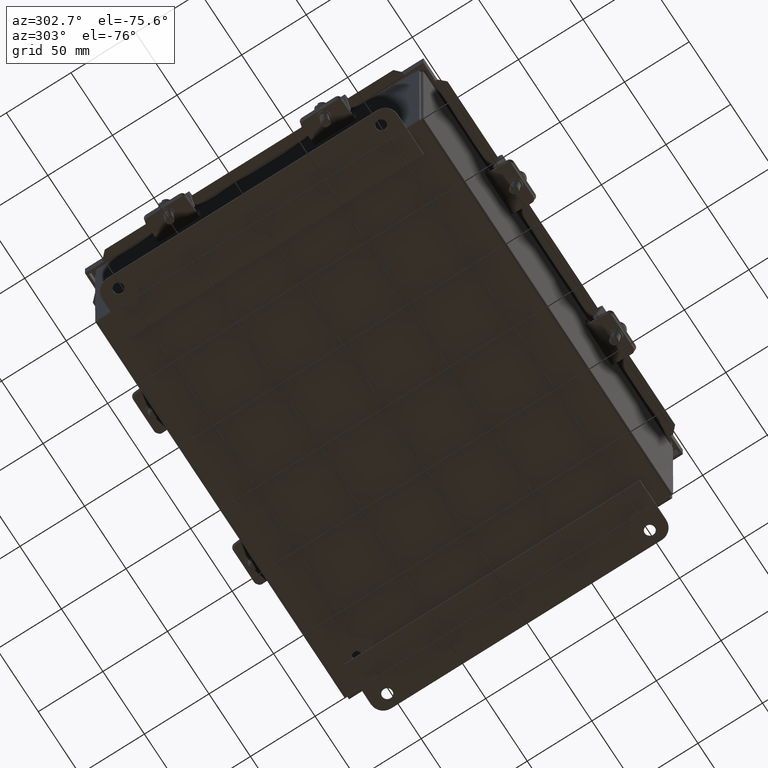
[diagram: clean part render]
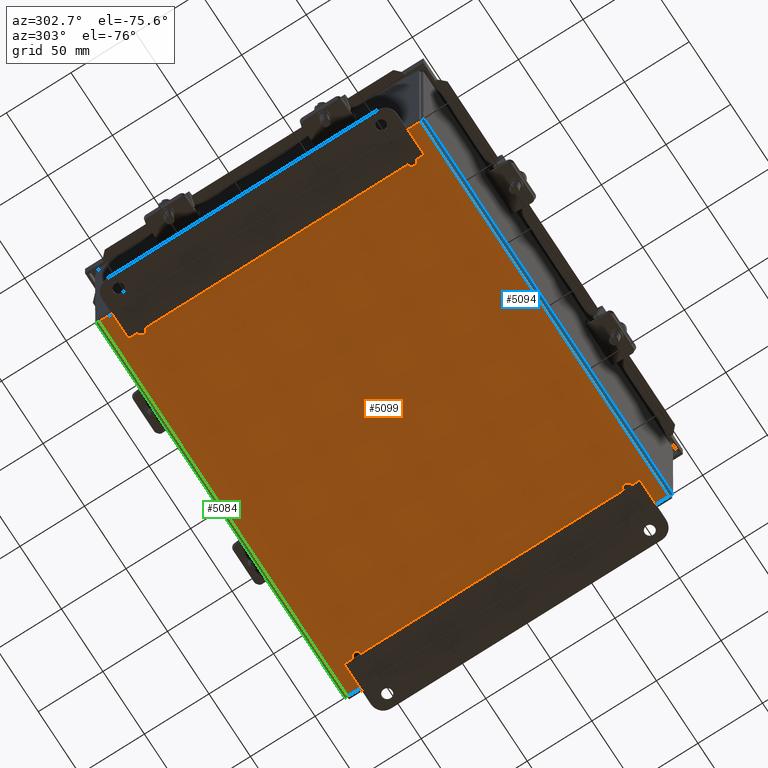
[diagram: same view with three faces highlighted in distinct colors, each labeled with its STEP entity id]
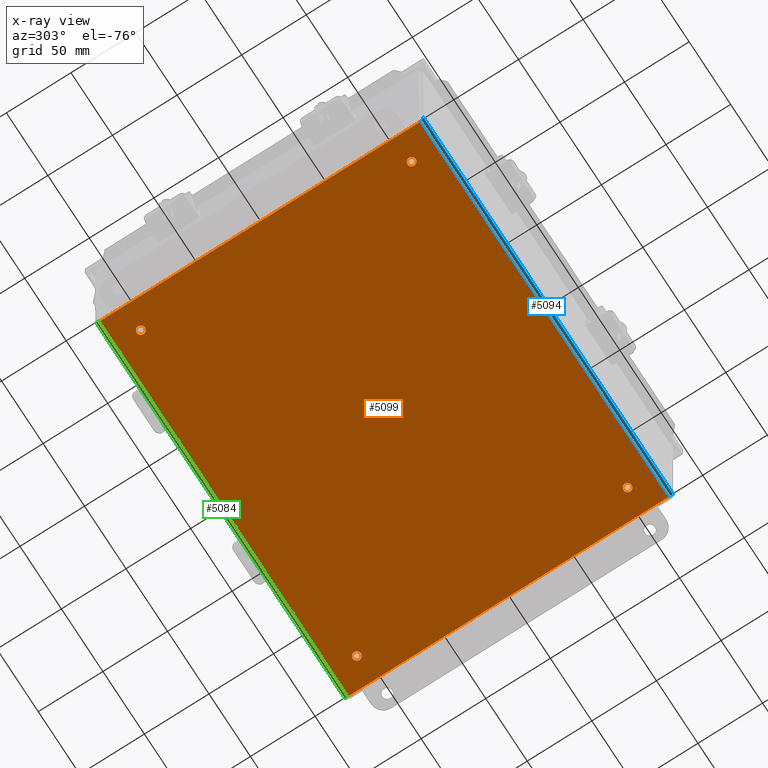
[diagram: x-ray of the same camera — body ghosted, the three highlighted faces saturated]
A machine part, auxiliary view with three faces highlighted in distinct colors.
The next image is the same camera in x-ray (body ghosted, the three faces saturated) — at least one of them is partly hidden behind the body in this view.
Their STEP definitions:

[orange] entity #5099 — the highlighted planar face has unit normal (-0, 0.0014, 1).
#511=FACE_BOUND('',#1325,.T.);
#512=FACE_BOUND('',#1326,.T.);
#513=FACE_BOUND('',#1327,.T.);
#514=FACE_BOUND('',#1328,.T.);
#686=PLANE('',#5704);
#1023=FACE_OUTER_BOUND('',#1324,.T.);
#1324=EDGE_LOOP('',(#4664,#4665,#4666,#4667));
#1325=EDGE_LOOP('',(#4668));
#1326=EDGE_LOOP('',(#4669));
#1327=EDGE_LOOP('',(#4670));
#1328=EDGE_LOOP('',(#4671));
#1793=LINE('',#8934,#2260);
#1798=LINE('',#9013,#2265);
#1802=LINE('',#9090,#2269);
#1806=LINE('',#9166,#2273);
#2260=VECTOR('',#6879,0.393700787401575);
#2265=VECTOR('',#6890,0.393700787401575);
#2269=VECTOR('',#6900,0.393700787401575);
#2273=VECTOR('',#6910,0.393700787401575);
#2395=CIRCLE('',#5642,0.125);
#2397=CIRCLE('',#5645,0.125);
#2399=CIRCLE('',#5648,0.125);
#2401=CIRCLE('',#5651,0.125);
#2718=VERTEX_POINT('',#8435);
#2720=VERTEX_POINT('',#8441);
#2722=VERTEX_POINT('',#8447);
#2724=VERTEX_POINT('',#8453);
#2789=VERTEX_POINT('',#8925);
#2790=VERTEX_POINT('',#8933);
#2793=VERTEX_POINT('',#9005);
#2795=VERTEX_POINT('',#9082);
#3280=EDGE_CURVE('',#2718,#2718,#2395,.T.);
#3283=EDGE_CURVE('',#2720,#2720,#2397,.T.);
#3286=EDGE_CURVE('',#2722,#2722,#2399,.T.);
#3289=EDGE_CURVE('',#2724,#2724,#2401,.T.);
#3399=EDGE_CURVE('',#2790,#2789,#1793,.T.);
#3408=EDGE_CURVE('',#2789,#2793,#1798,.T.);
#3416=EDGE_CURVE('',#2793,#2795,#1802,.T.);
#3424=EDGE_CURVE('',#2795,#2790,#1806,.T.);
#4664=ORIENTED_EDGE('',*,*,#3399,.T.);
#4665=ORIENTED_EDGE('',*,*,#3408,.T.);
#4666=ORIENTED_EDGE('',*,*,#3416,.T.);
#4667=ORIENTED_EDGE('',*,*,#3424,.T.);
#4668=ORIENTED_EDGE('',*,*,#3280,.T.);
#4669=ORIENTED_EDGE('',*,*,#3283,.T.);
#4670=ORIENTED_EDGE('',*,*,#3286,.T.);
#4671=ORIENTED_EDGE('',*,*,#3289,.T.);
#5099=ADVANCED_FACE('',(#1023,#511,#512,#513,#514),#686,.F.);
#5642=AXIS2_PLACEMENT_3D('',#8437,#6682,#6683);
#5645=AXIS2_PLACEMENT_3D('',#8443,#6689,#6690);
#5648=AXIS2_PLACEMENT_3D('',#8449,#6696,#6697);
#5651=AXIS2_PLACEMENT_3D('',#8455,#6703,#6704);
#5704=AXIS2_PLACEMENT_3D('',#9232,#6917,#6918);
#6682=DIRECTION('center_axis',(0.,0.,1.));
#6683=DIRECTION('ref_axis',(-1.,0.,0.));
#6689=DIRECTION('center_axis',(0.,0.,1.));
#6690=DIRECTION('ref_axis',(-1.,0.,0.));
#6696=DIRECTION('center_axis',(0.,0.,1.));
#6697=DIRECTION('ref_axis',(-1.,0.,0.));
#6703=DIRECTION('center_axis',(0.,0.,1.));
#6704=DIRECTION('ref_axis',(-1.,0.,0.));
#6879=DIRECTION('',(-1.,0.,0.));
#6890=DIRECTION('',(-3.07722476405797E-16,1.,0.));
#6900=DIRECTION('',(1.,0.,0.));
#6910=DIRECTION('',(0.,-1.,0.));
#6917=DIRECTION('center_axis',(0.,0.,1.));
#6918=DIRECTION('ref_axis',(1.,0.,0.));
#8435=CARTESIAN_POINT('',(9.25000000000002,11.125,0.));
#8437=CARTESIAN_POINT('Origin',(9.12500000000002,11.125,0.));
#8441=CARTESIAN_POINT('',(0.999999999999998,11.125,0.));
#8443=CARTESIAN_POINT('Origin',(0.874999999999998,11.125,0.));
#8447=CARTESIAN_POINT('',(0.999999999999998,0.875,0.));
#8449=CARTESIAN_POINT('Origin',(0.874999999999998,0.875,0.));
#8453=CARTESIAN_POINT('',(9.25000000000002,0.875000000000001,0.));
#8455=CARTESIAN_POINT('Origin',(9.12500000000002,0.875000000000001,0.));
#8925=CARTESIAN_POINT('',(0.105250000000001,0.105250000000002,-2.18547839493141E-17));
#8933=CARTESIAN_POINT('',(9.89474999999999,0.10525,-2.18547839493141E-17));
#8934=CARTESIAN_POINT('',(7.44737499999999,0.105250000000001,0.));
#9005=CARTESIAN_POINT('',(0.105249999999997,11.89475,-2.18547839493141E-17));
#9013=CARTESIAN_POINT('',(0.105250000000001,3.052625,0.));
#9082=CARTESIAN_POINT('',(9.89474999999999,11.89475,-2.18547839493141E-17));
#9090=CARTESIAN_POINT('',(2.552625,11.89475,0.));
#9166=CARTESIAN_POINT('',(9.89474999999999,8.947375,0.));
#9232=CARTESIAN_POINT('Origin',(4.99999999999999,6.,0.));

[blue] entity #5094 — the highlighted cylindrical surface (edge-blend (fillet) strip) has radius 2.6733 mm, axis along (-1, -0, -0).
#237=B_SPLINE_CURVE_WITH_KNOTS('',3,(#9159,#9160,#9161,#9162,#9163,#9164,
#9165),.UNSPECIFIED.,.F.,.F.,(4,3,4),(0.,0.673198425769243,1.5707963267949),
 .UNSPECIFIED.);
#238=B_SPLINE_CURVE_WITH_KNOTS('',3,(#9167,#9168,#9169,#9170,#9171,#9172,
#9173),.UNSPECIFIED.,.F.,.F.,(4,3,4),(0.,0.897597901025628,1.57079632679485),
 .UNSPECIFIED.);
#750=CYLINDRICAL_SURFACE('',#5701,0.105249999999999);
#1018=FACE_OUTER_BOUND('',#1319,.T.);
#1319=EDGE_LOOP('',(#4644,#4645,#4646,#4647));
#1773=LINE('',#8886,#2240);
#1806=LINE('',#9166,#2273);
#2240=VECTOR('',#6841,0.393700787401575);
#2273=VECTOR('',#6910,0.393700787401575);
#2777=VERTEX_POINT('',#8883);
#2778=VERTEX_POINT('',#8885);
#2790=VERTEX_POINT('',#8933);
#2795=VERTEX_POINT('',#9082);
#3378=EDGE_CURVE('',#2777,#2778,#1773,.T.);
#3423=EDGE_CURVE('',#2790,#2777,#237,.T.);
#3424=EDGE_CURVE('',#2795,#2790,#1806,.T.);
#3425=EDGE_CURVE('',#2778,#2795,#238,.T.);
#4644=ORIENTED_EDGE('',*,*,#3378,.F.);
#4645=ORIENTED_EDGE('',*,*,#3423,.F.);
#4646=ORIENTED_EDGE('',*,*,#3424,.F.);
#4647=ORIENTED_EDGE('',*,*,#3425,.F.);
#5094=ADVANCED_FACE('',(#1018),#750,.T.);
#5701=AXIS2_PLACEMENT_3D('',#9158,#6908,#6909);
#6841=DIRECTION('',(-3.08694997030998E-16,1.,1.03567203473441E-30));
#6908=DIRECTION('center_axis',(1.16558847729675E-16,-1.,0.));
#6909=DIRECTION('ref_axis',(0.,0.,-1.));
#6910=DIRECTION('',(0.,-1.,0.));
#8883=CARTESIAN_POINT('',(10.,0.0747071067811865,0.105249999999998));
#8885=CARTESIAN_POINT('',(9.99999999999999,11.9252928932188,0.105249999999997));
#8886=CARTESIAN_POINT('',(9.99999999999999,6.,0.105249999999998));
#8933=CARTESIAN_POINT('',(9.89474999999999,0.10525,-2.18547839493141E-17));
#9082=CARTESIAN_POINT('',(9.89474999999999,11.89475,-2.18547839493141E-17));
#9158=CARTESIAN_POINT('Origin',(9.89474999999999,6.,0.10525));
#9159=CARTESIAN_POINT('Ctrl Pts',(9.89474999999999,0.105250000000001,4.37095678986282E-16));
#9160=CARTESIAN_POINT('Ctrl Pts',(9.91836804477073,0.10088672954017,4.32412510997143E-16));
#9161=CARTESIAN_POINT('Ctrl Pts',(9.94201558536523,0.0965234590803397,0.00825742343281623));
#9162=CARTESIAN_POINT('Ctrl Pts',(9.96038742988002,0.0921601886205091,0.0229846770405887));
#9163=CARTESIAN_POINT('Ctrl Pts',(9.98488322256641,0.0863424946740682,0.0426210151842852));
#9164=CARTESIAN_POINT('Ctrl Pts',(10.,0.0805248007276273,0.0737592736390159));
#9165=CARTESIAN_POINT('Ctrl Pts',(10.,0.0747071067811863,0.105249999999999));
#9166=CARTESIAN_POINT('',(9.89474999999999,8.947375,0.));
#9167=CARTESIAN_POINT('Ctrl Pts',(9.99999999999999,11.9252928932188,0.105249999999996));
#9168=CARTESIAN_POINT('Ctrl Pts',(9.99999999999999,11.9194751992724,0.0737592736390151));
#9169=CARTESIAN_POINT('Ctrl Pts',(9.98488302188541,11.9136575053259,0.0426212559731817));
#9170=CARTESIAN_POINT('Ctrl Pts',(9.96038725786774,11.9078398113795,0.0229848834310725));
#9171=CARTESIAN_POINT('Ctrl Pts',(9.94201543485448,11.9034765409197,0.00825760402449058));
#9172=CARTESIAN_POINT('Ctrl Pts',(9.91836804477073,11.8991132704598,3.57482935905414E-15));
#9173=CARTESIAN_POINT('Ctrl Pts',(9.89475,11.89475,3.08152453685329E-15));

[green] entity #5084 — the highlighted cylindrical surface (edge-blend (fillet) strip) has radius 2.6733 mm, axis along (1, 0, 0).
#229=B_SPLINE_CURVE_WITH_KNOTS('',3,(#9006,#9007,#9008,#9009,#9010,#9011,
#9012),.UNSPECIFIED.,.F.,.F.,(4,3,4),(0.,0.897597901025666,1.57079632679492),
 .UNSPECIFIED.);
#230=B_SPLINE_CURVE_WITH_KNOTS('',3,(#9014,#9015,#9016,#9017,#9018,#9019,
#9020),.UNSPECIFIED.,.F.,.F.,(4,3,4),(0.,0.673198425769246,1.57079632679491),
 .UNSPECIFIED.);
#746=CYLINDRICAL_SURFACE('',#5695,0.10525);
#1008=FACE_OUTER_BOUND('',#1309,.T.);
#1309=EDGE_LOOP('',(#4604,#4605,#4606,#4607));
#1787=LINE('',#8914,#2254);
#1798=LINE('',#9013,#2265);
#2254=VECTOR('',#6867,0.393700787401575);
#2265=VECTOR('',#6890,0.393700787401575);
#2785=VERTEX_POINT('',#8911);
#2786=VERTEX_POINT('',#8913);
#2789=VERTEX_POINT('',#8925);
#2793=VERTEX_POINT('',#9005);
#3392=EDGE_CURVE('',#2785,#2786,#1787,.T.);
#3407=EDGE_CURVE('',#2793,#2785,#229,.T.);
#3408=EDGE_CURVE('',#2789,#2793,#1798,.T.);
#3409=EDGE_CURVE('',#2786,#2789,#230,.T.);
#4604=ORIENTED_EDGE('',*,*,#3392,.F.);
#4605=ORIENTED_EDGE('',*,*,#3407,.F.);
#4606=ORIENTED_EDGE('',*,*,#3408,.F.);
#4607=ORIENTED_EDGE('',*,*,#3409,.F.);
#5084=ADVANCED_FACE('',(#1008),#746,.T.);
#5695=AXIS2_PLACEMENT_3D('',#9004,#6888,#6889);
#6867=DIRECTION('',(3.11785846906339E-16,-1.,1.79463641766916E-34));
#6888=DIRECTION('center_axis',(-3.08854983217447E-16,1.,0.));
#6889=DIRECTION('ref_axis',(0.,0.,-1.));
#6890=DIRECTION('',(-3.07722476405797E-16,1.,0.));
#8911=CARTESIAN_POINT('',(-1.70409567094944E-15,11.9252928932188,0.105250000000001));
#8913=CARTESIAN_POINT('',(1.98879897916164E-15,0.0747071067811902,0.105250000000001));
#8914=CARTESIAN_POINT('',(1.42351654106102E-16,6.,0.10525));
#8925=CARTESIAN_POINT('',(0.105250000000001,0.105250000000002,-2.18547839493141E-17));
#9004=CARTESIAN_POINT('Origin',(0.10525,6.,0.10525));
#9005=CARTESIAN_POINT('',(0.105249999999997,11.89475,-2.18547839493141E-17));
#9006=CARTESIAN_POINT('Ctrl Pts',(0.105249999999998,11.89475,4.42559374973611E-16));
#9007=CARTESIAN_POINT('Ctrl Pts',(0.0737592736390143,11.9005676939464,4.30070927002574E-16));
#9008=CARTESIAN_POINT('Ctrl Pts',(0.0426210861791472,11.9063853878929,0.0151168366029245));
#9009=CARTESIAN_POINT('Ctrl Pts',(0.022984737893327,11.9122030818393,0.0396126208365521));
#9010=CARTESIAN_POINT('Ctrl Pts',(0.00825747667896179,11.9165663522992,
0.0579844590117728));
#9011=CARTESIAN_POINT('Ctrl Pts',(-2.11205375971466E-15,11.920929622759,
0.0816319552292641));
#9012=CARTESIAN_POINT('Ctrl Pts',(-1.69374575607184E-15,11.9252928932188,
0.105250000000002));
#9013=CARTESIAN_POINT('',(0.105250000000001,3.052625,0.));
#9014=CARTESIAN_POINT('Ctrl Pts',(1.99971273136224E-15,0.0747071067811898,
0.105250000000001));
#9015=CARTESIAN_POINT('Ctrl Pts',(1.76633485990349E-15,0.07907037724102,
0.0816319552292634));
#9016=CARTESIAN_POINT('Ctrl Pts',(0.00824795215756956,0.0834336477008503,
0.0579765209777053));
#9017=CARTESIAN_POINT('Ctrl Pts',(0.022973852726021,0.0877969181606807,
0.0396035487976181));
#9018=CARTESIAN_POINT('Ctrl Pts',(0.0426083868172896,0.0936146121071211,
0.0151062525575018));
#9019=CARTESIAN_POINT('Ctrl Pts',(0.0737592736390179,0.0994323060535615,
5.32450182765135E-16));
#9020=CARTESIAN_POINT('Ctrl Pts',(0.105250000000001,0.105250000000002,4.8080524688491E-16));